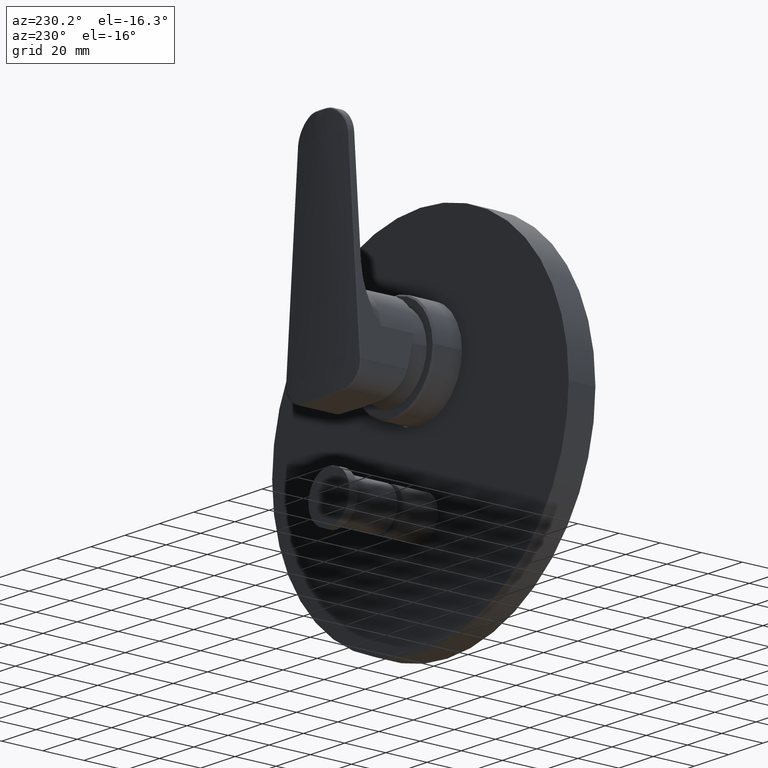
[diagram: clean part render]
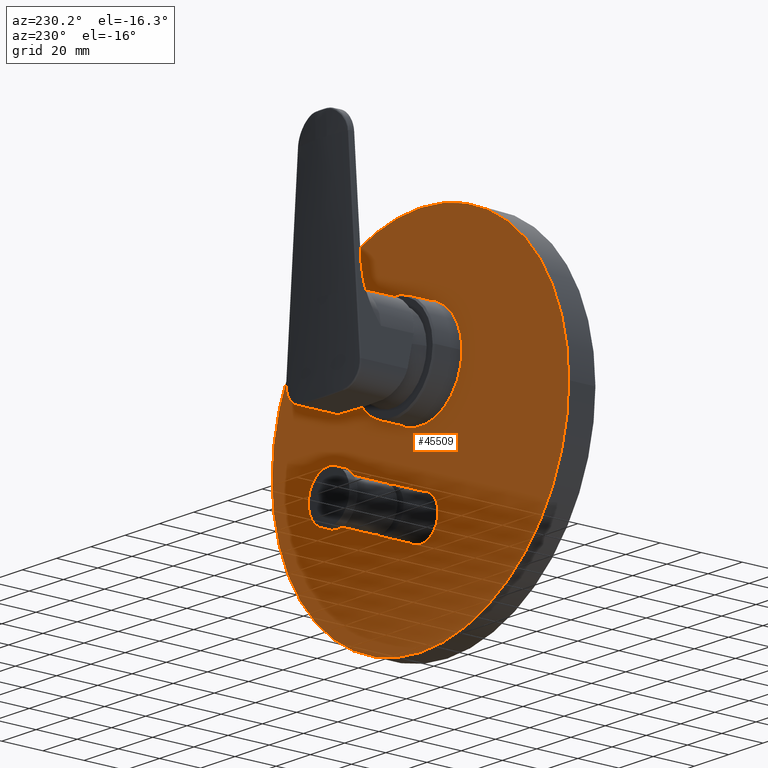
[diagram: same view with one face highlighted and labeled with its STEP entity id]
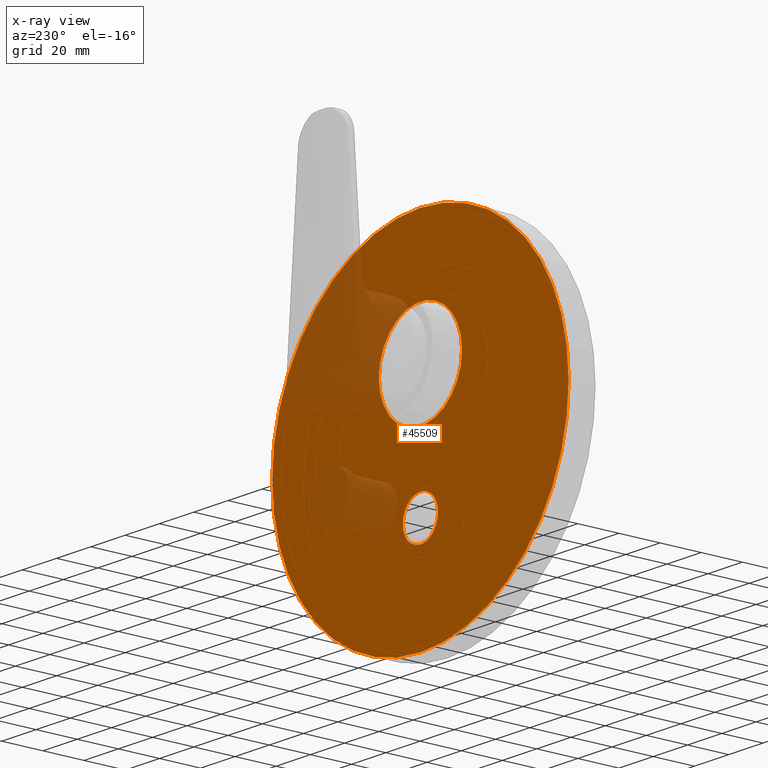
[diagram: x-ray of the same camera — body ghosted, the highlighted face saturated]
A machine part, auxiliary view. The second image highlights one B-rep face of the part: STEP entity #45509.
The next image is the same camera in x-ray: the body ghosted, the highlighted face saturated — about 17% of this face is hidden behind the body in this view.
In plain terms, the highlighted planar face has unit normal (0, 1, 0).
Its self-contained STEP definition (entity closure, byte-faithful):
#44522=CARTESIAN_POINT('',(0.E0,6.65E1,-2.5E-1));
#44523=DIRECTION('',(0.E0,1.E0,0.E0));
#44524=DIRECTION('',(1.E0,0.E0,0.E0));
#44525=AXIS2_PLACEMENT_3D('',#44522,#44523,#44524);
#44527=CARTESIAN_POINT('',(0.E0,6.65E1,-2.5E-1));
#44528=DIRECTION('',(0.E0,1.E0,0.E0));
#44529=DIRECTION('',(-1.E0,0.E0,0.E0));
#44530=AXIS2_PLACEMENT_3D('',#44527,#44528,#44529);
#44532=CARTESIAN_POINT('',(0.E0,6.65E1,2.55E1));
#44533=DIRECTION('',(0.E0,-1.E0,0.E0));
#44534=DIRECTION('',(1.E0,0.E0,0.E0));
#44535=AXIS2_PLACEMENT_3D('',#44532,#44533,#44534);
#44537=CARTESIAN_POINT('',(0.E0,6.65E1,2.55E1));
#44538=DIRECTION('',(0.E0,-1.E0,0.E0));
#44539=DIRECTION('',(-1.E0,0.E0,0.E0));
#44540=AXIS2_PLACEMENT_3D('',#44537,#44538,#44539);
#44542=CARTESIAN_POINT('',(0.E0,6.65E1,-3.45E1));
#44543=DIRECTION('',(0.E0,-1.E0,0.E0));
#44544=DIRECTION('',(1.E0,0.E0,0.E0));
#44545=AXIS2_PLACEMENT_3D('',#44542,#44543,#44544);
#44547=CARTESIAN_POINT('',(0.E0,6.65E1,-3.45E1));
#44548=DIRECTION('',(0.E0,-1.E0,0.E0));
#44549=DIRECTION('',(-1.E0,0.E0,0.E0));
#44550=AXIS2_PLACEMENT_3D('',#44547,#44548,#44549);
#45098=CARTESIAN_POINT('',(8.65E1,6.65E1,-2.5E-1));
#45099=CARTESIAN_POINT('',(-8.65E1,6.65E1,-2.5E-1));
#45100=VERTEX_POINT('',#45098);
#45101=VERTEX_POINT('',#45099);
#45102=CARTESIAN_POINT('',(2.425E1,6.65E1,2.55E1));
#45103=CARTESIAN_POINT('',(-2.425E1,6.65E1,2.55E1));
#45104=VERTEX_POINT('',#45102);
#45105=VERTEX_POINT('',#45103);
#45106=CARTESIAN_POINT('',(1.025E1,6.65E1,-3.45E1));
#45107=CARTESIAN_POINT('',(-1.025E1,6.65E1,-3.45E1));
#45108=VERTEX_POINT('',#45106);
#45109=VERTEX_POINT('',#45107);
#45488=CARTESIAN_POINT('',(0.E0,6.65E1,-2.5E-1));
#45489=DIRECTION('',(0.E0,1.E0,0.E0));
#45490=DIRECTION('',(1.E0,0.E0,0.E0));
#45491=AXIS2_PLACEMENT_3D('',#45488,#45489,#45490);
#45492=PLANE('',#45491);
#45494=ORIENTED_EDGE('',*,*,#45493,.F.);
#45496=ORIENTED_EDGE('',*,*,#45495,.F.);
#45497=EDGE_LOOP('',(#45494,#45496));
#45498=FACE_OUTER_BOUND('',#45497,.F.);
#45500=ORIENTED_EDGE('',*,*,#45499,.F.);
#45502=ORIENTED_EDGE('',*,*,#45501,.F.);
#45503=EDGE_LOOP('',(#45500,#45502));
#45504=FACE_BOUND('',#45503,.F.);
#45505=ORIENTED_EDGE('',*,*,#45454,.F.);
#45506=ORIENTED_EDGE('',*,*,#45475,.F.);
#45507=EDGE_LOOP('',(#45505,#45506));
#45508=FACE_BOUND('',#45507,.F.);
#45509=ADVANCED_FACE('',(#45498,#45504,#45508),#45492,.T.);
#44526=CIRCLE('',#44525,8.65E1);
#44531=CIRCLE('',#44530,8.65E1);
#44536=CIRCLE('',#44535,2.425E1);
#44541=CIRCLE('',#44540,2.425E1);
#44546=CIRCLE('',#44545,1.025E1);
#44551=CIRCLE('',#44550,1.025E1);
#45454=EDGE_CURVE('',#45108,#45109,#44546,.T.);
#45475=EDGE_CURVE('',#45109,#45108,#44551,.T.);
#45493=EDGE_CURVE('',#45100,#45101,#44526,.T.);
#45495=EDGE_CURVE('',#45101,#45100,#44531,.T.);
#45499=EDGE_CURVE('',#45104,#45105,#44536,.T.);
#45501=EDGE_CURVE('',#45105,#45104,#44541,.T.);